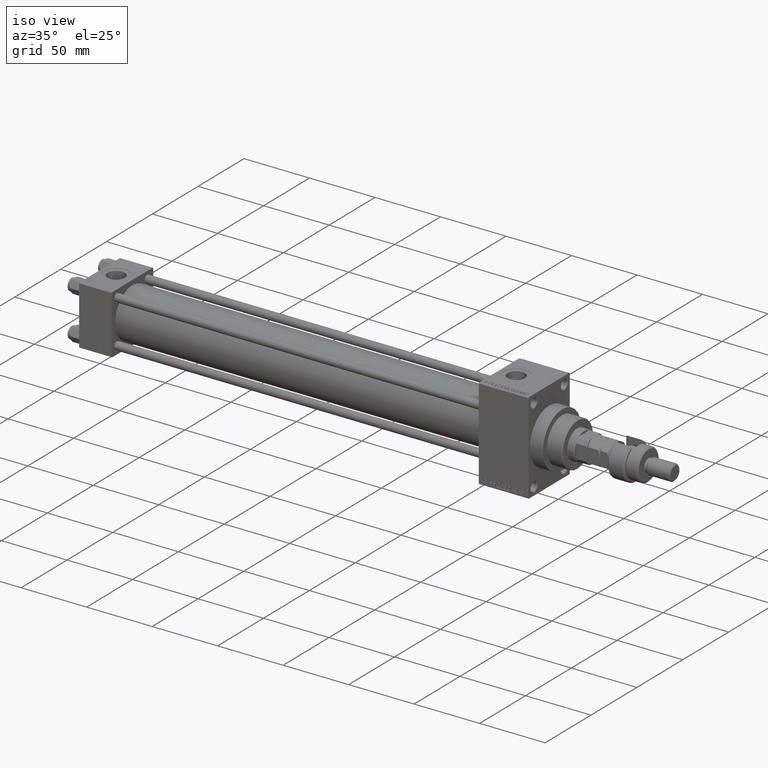
[diagram: clean part render]
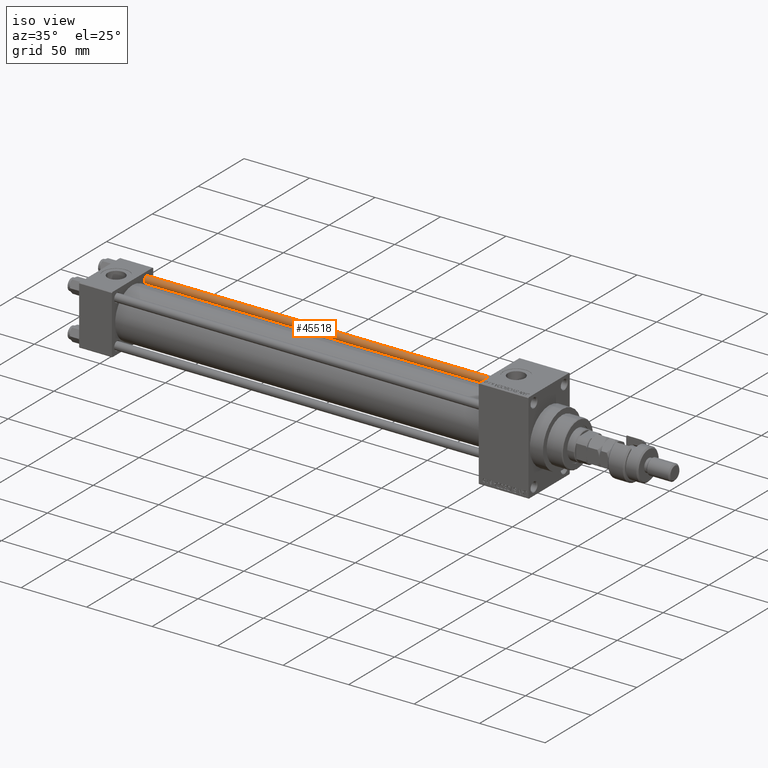
[diagram: same view with one face highlighted and labeled with its STEP entity id]
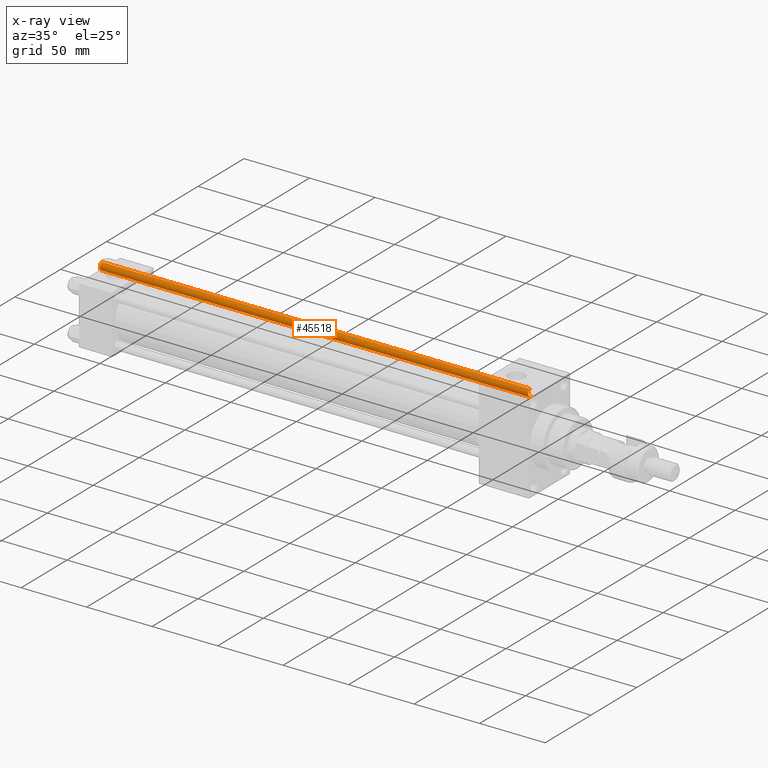
[diagram: x-ray of the same camera — body ghosted, the highlighted face saturated]
A machine part, iso view. The second image highlights one B-rep face of the part: STEP entity #45518.
The next image is the same camera in x-ray: the body ghosted, the highlighted face saturated — about 0% of this face is hidden behind the body in this view.
In plain terms, the highlighted cylindrical surface (edge-blend (fillet) strip) has radius 3 mm, axis along (-1, -0, 0).
Its self-contained STEP definition (entity closure, byte-faithful):
#63 = EDGE_CURVE ( 'NONE', #43945, #40254, #26323, .T. ) ;
#779 = VECTOR ( 'NONE', #22418, 1000.000000000000000 ) ;
#2357 = EDGE_CURVE ( 'NONE', #7350, #40254, #26613, .T. ) ;
#4137 = CARTESIAN_POINT ( 'NONE',  ( -3.000000000000000444, 0.000000000000000000, 327.5000000000000000 ) ) ;
#4616 = CARTESIAN_POINT ( 'NONE',  ( 3.000000000000000444, 3.673940397442060361E-16, 0.5000000000000559552 ) ) ;
#6679 = DIRECTION ( 'NONE',  ( 1.000000000000000000, 0.000000000000000000, 0.000000000000000000 ) ) ;
#7350 = VERTEX_POINT ( 'NONE', #21556 ) ;
#9035 = AXIS2_PLACEMENT_3D ( 'NONE', #34297, #35518, #23991 ) ;
#10286 = DIRECTION ( 'NONE',  ( 1.000000000000000000, 0.000000000000000000, 0.000000000000000000 ) ) ;
#11899 = CYLINDRICAL_SURFACE ( 'NONE', #9035, 3.000000000000000444 ) ;
#14677 = ORIENTED_EDGE ( 'NONE', *, *, #48904, .T. ) ;
#14728 = ORIENTED_EDGE ( 'NONE', *, *, #2357, .F. ) ;
#17362 = VERTEX_POINT ( 'NONE', #4137 ) ;
#18733 = CARTESIAN_POINT ( 'NONE',  ( 3.000000000000000444, 3.673940397442060361E-16, 328.0000000000000000 ) ) ;
#19518 = FACE_OUTER_BOUND ( 'NONE', #29176, .T. ) ;
#21556 = CARTESIAN_POINT ( 'NONE',  ( 3.000000000000000444, 3.673940397442060361E-16, 327.5000000000000000 ) ) ;
#21935 = CARTESIAN_POINT ( 'NONE',  ( 0.000000000000000000, 0.000000000000000000, 327.5000000000000000 ) ) ;
#22418 = DIRECTION ( 'NONE',  ( -0.000000000000000000, -0.000000000000000000, -1.000000000000000000 ) ) ;
#23991 = DIRECTION ( 'NONE',  ( -1.000000000000000000, 0.000000000000000000, 0.000000000000000000 ) ) ;
#26323 = CIRCLE ( 'NONE', #37228, 3.000000000000000444 ) ;
#26613 = LINE ( 'NONE', #18733, #28655 ) ;
#27643 = ORIENTED_EDGE ( 'NONE', *, *, #63, .T. ) ;
#28655 = VECTOR ( 'NONE', #30794, 1000.000000000000000 ) ;
#29176 = EDGE_LOOP ( 'NONE', ( #14728, #49979, #14677, #27643 ) ) ;
#30000 = EDGE_CURVE ( 'NONE', #7350, #17362, #34557, .T. ) ;
#30563 = DIRECTION ( 'NONE',  ( 0.000000000000000000, 0.000000000000000000, -1.000000000000000000 ) ) ;
#30794 = DIRECTION ( 'NONE',  ( -0.000000000000000000, -0.000000000000000000, -1.000000000000000000 ) ) ;
#31035 = LINE ( 'NONE', #46549, #779 ) ;
#34297 = CARTESIAN_POINT ( 'NONE',  ( 0.000000000000000000, 0.000000000000000000, 328.0000000000000000 ) ) ;
#34557 = CIRCLE ( 'NONE', #48801, 3.000000000000000444 ) ;
#34943 = DIRECTION ( 'NONE',  ( -0.000000000000000000, -0.000000000000000000, 1.000000000000000000 ) ) ;
#35518 = DIRECTION ( 'NONE',  ( -0.000000000000000000, -0.000000000000000000, -1.000000000000000000 ) ) ;
#37228 = AXIS2_PLACEMENT_3D ( 'NONE', #42579, #34943, #10286 ) ;
#40254 = VERTEX_POINT ( 'NONE', #4616 ) ;
#40308 = CARTESIAN_POINT ( 'NONE',  ( -3.000000000000000444, 0.000000000000000000, 0.5000000000000559552 ) ) ;
#42579 = CARTESIAN_POINT ( 'NONE',  ( 0.000000000000000000, 0.000000000000000000, 0.5000000000000559552 ) ) ;
#43945 = VERTEX_POINT ( 'NONE', #40308 ) ;
#45518 = ADVANCED_FACE ( 'NONE', ( #19518 ), #11899, .T. ) ;
#46549 = CARTESIAN_POINT ( 'NONE',  ( -3.000000000000000444, 0.000000000000000000, 328.0000000000000000 ) ) ;
#48801 = AXIS2_PLACEMENT_3D ( 'NONE', #21935, #30563, #6679 ) ;
#48904 = EDGE_CURVE ( 'NONE', #17362, #43945, #31035, .T. ) ;
#49979 = ORIENTED_EDGE ( 'NONE', *, *, #30000, .T. ) ;